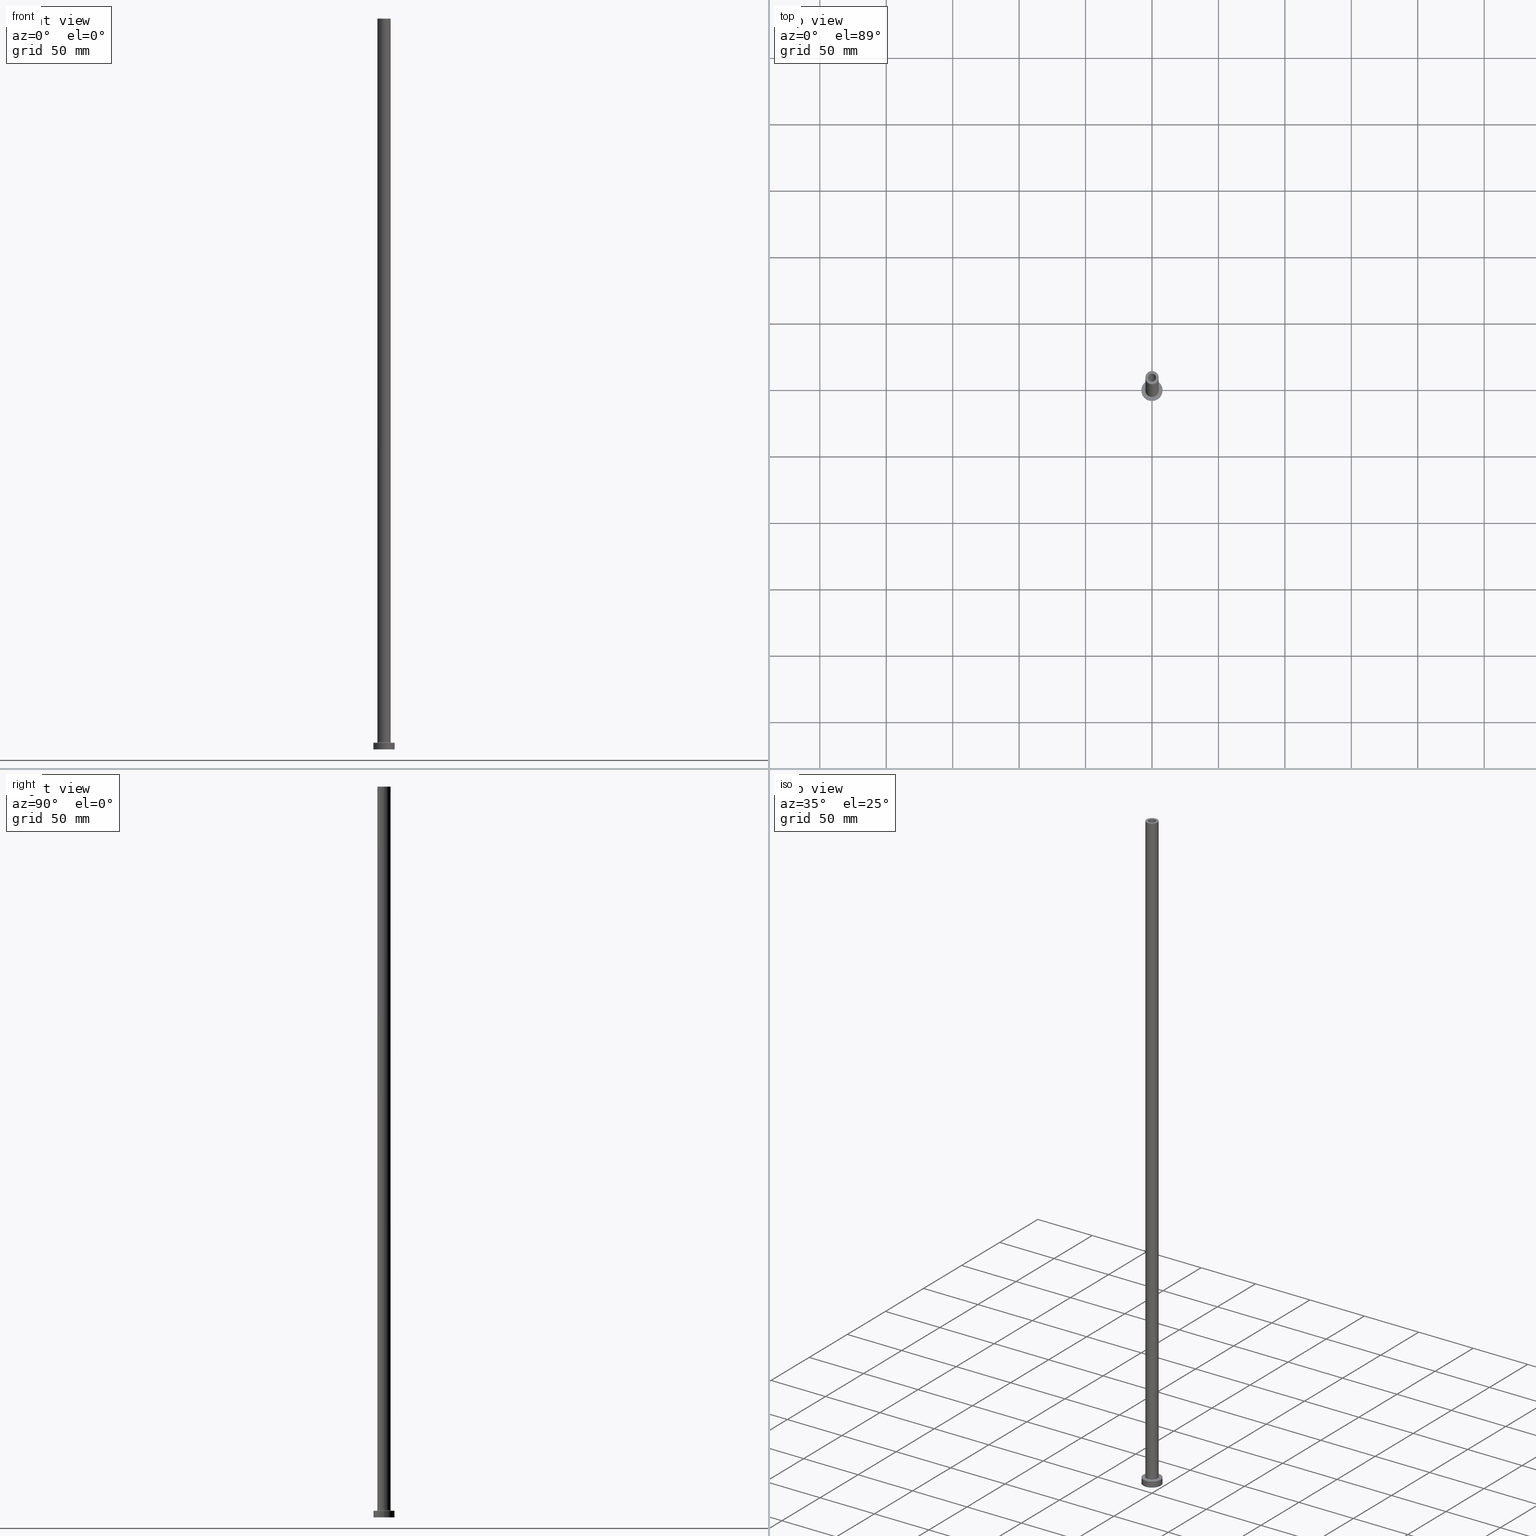
[diagram: canonical four-view strip — front | top / right | iso, engineering-drawing reading convention]
A machine part, canonical four-view strip (front | top / right | iso — engineering-drawing reading convention). The complete STEP part file that produces these views, byte-faithful:
ISO-10303-21;
HEADER;
FILE_DESCRIPTION (( 'STEP AP203' ),
    '1' );
FILE_NAME ('f461.STEP',
    '2023-02-13T15:29:50',
    ( '' ),
    ( '' ),
    'SwSTEP 2.0',
    'SolidWorks 2019',
    '' );
FILE_SCHEMA (( 'CONFIG_CONTROL_DESIGN' ));
ENDSEC;

DATA;
#1 = APPLICATION_PROTOCOL_DEFINITION ( 'international standard', 'config_control_design', 1994, #307 ) ;
#2 = DIRECTION ( 'NONE',  ( 1.000000000000000000, 0.000000000000000000, 0.000000000000000000 ) ) ;
#3 = EDGE_CURVE ( 'NONE', #164, #118, #447, .T. ) ;
#4 = VECTOR ( 'NONE', #140, 1000.000000000000000 ) ;
#5 = DIRECTION ( 'NONE',  ( -1.000000000000000000, 0.000000000000000000, 0.000000000000000000 ) ) ;
#6 = DIRECTION ( 'NONE',  ( -0.000000000000000000, -0.000000000000000000, -1.000000000000000000 ) ) ;
#7 = VECTOR ( 'NONE', #128, 1000.000000000000000 ) ;
#8 = DIRECTION ( 'NONE',  ( 0.000000000000000000, 0.000000000000000000, 1.000000000000000000 ) ) ;
#9 = AXIS2_PLACEMENT_3D ( 'NONE', #265, #203, #244 ) ;
#10 = EDGE_CURVE ( 'NONE', #369, #224, #190, .T. ) ;
#11 = CARTESIAN_POINT ( 'NONE',  ( 5.000000000000000000, 6.123233995736766282E-16, 5.499999999999949374 ) ) ;
#12 = ORIENTED_EDGE ( 'NONE', *, *, #10, .F. ) ;
#13 = ORIENTED_EDGE ( 'NONE', *, *, #80, .F. ) ;
#14 = AXIS2_PLACEMENT_3D ( 'NONE', #144, #178, #242 ) ;
#15 = CARTESIAN_POINT ( 'NONE',  ( 8.000000000000000000, 9.797174393178825657E-16, 0.000000000000000000 ) ) ;
#16 = VERTEX_POINT ( 'NONE', #30 ) ;
#17 = ADVANCED_FACE ( 'NONE', ( #424 ), #100, .F. ) ;
#18 = EDGE_LOOP ( 'NONE', ( #165, #266, #161, #77 ) ) ;
#19 = ORIENTED_EDGE ( 'NONE', *, *, #243, .T. ) ;
#20 = CARTESIAN_POINT ( 'NONE',  ( 0.000000000000000000, 0.000000000000000000, 550.0000000000000000 ) ) ;
#21 = PLANE ( 'NONE',  #450 ) ;
#22 = EDGE_CURVE ( 'NONE', #306, #405, #288, .T. ) ;
#23 = CARTESIAN_POINT ( 'NONE',  ( 5.000000000000000000, 6.123233995736766282E-16, 550.0000000000000000 ) ) ;
#24 = DATE_AND_TIME ( #63, #408 ) ;
#25 = CARTESIAN_POINT ( 'NONE',  ( 3.150000000000000355, 3.857637417314163182E-16, 0.000000000000000000 ) ) ;
#26 = CIRCLE ( 'NONE', #99, 3.150000000000000355 ) ;
#27 = AXIS2_PLACEMENT_3D ( 'NONE', #454, #381, #173 ) ;
#28 = CARTESIAN_POINT ( 'NONE',  ( 0.000000000000000000, 0.000000000000000000, 550.0000000000000000 ) ) ;
#29 = PERSON_AND_ORGANIZATION ( #88, #344 ) ;
#30 = CARTESIAN_POINT ( 'NONE',  ( -3.000000000000000444, 0.000000000000000000, 505.0000000000000000 ) ) ;
#31 = CARTESIAN_POINT ( 'NONE',  ( 0.000000000000000000, 0.000000000000000000, 0.000000000000000000 ) ) ;
#32 = CARTESIAN_POINT ( 'NONE',  ( -8.000000000000000000, 0.000000000000000000, 0.000000000000000000 ) ) ;
#33 = ORIENTED_EDGE ( 'NONE', *, *, #399, .F. ) ;
#34 = CC_DESIGN_SECURITY_CLASSIFICATION ( #108, ( #351 ) ) ;
#35 = APPROVAL_STATUS ( 'not_yet_approved' ) ;
#36 = ADVANCED_FACE ( 'NONE', ( #208 ), #109, .T. ) ;
#37 = AXIS2_PLACEMENT_3D ( 'NONE', #147, #282, #210 ) ;
#38 = FACE_BOUND ( 'NONE', #311, .T. ) ;
#39 = AXIS2_PLACEMENT_3D ( 'NONE', #31, #110, #286 ) ;
#40 = CARTESIAN_POINT ( 'NONE',  ( -3.150000000000000355, 0.000000000000000000, 0.000000000000000000 ) ) ;
#41 = DIRECTION ( 'NONE',  ( 0.000000000000000000, 0.000000000000000000, 1.000000000000000000 ) ) ;
#42 = ORIENTED_EDGE ( 'NONE', *, *, #217, .T. ) ;
#43 = CYLINDRICAL_SURFACE ( 'NONE', #220, 3.000000000000000444 ) ;
#44 = VECTOR ( 'NONE', #352, 1000.000000000000000 ) ;
#45 = EDGE_LOOP ( 'NONE', ( #134, #308, #197, #133 ) ) ;
#46 = CC_DESIGN_PERSON_AND_ORGANIZATION_ASSIGNMENT ( #29, #143, ( #270 ) ) ;
#47 = DIRECTION ( 'NONE',  ( 0.000000000000000000, 0.000000000000000000, -1.000000000000000000 ) ) ;
#48 = VERTEX_POINT ( 'NONE', #23 ) ;
#49 = CARTESIAN_POINT ( 'NONE',  ( 3.000000000000000444, 3.673940397442060361E-16, 505.0000000000000000 ) ) ;
#50 = ORIENTED_EDGE ( 'NONE', *, *, #313, .F. ) ;
#51 = EDGE_CURVE ( 'NONE', #273, #48, #174, .T. ) ;
#52 = ORIENTED_EDGE ( 'NONE', *, *, #10, .T. ) ;
#53 = EDGE_LOOP ( 'NONE', ( #54, #200 ) ) ;
#54 = ORIENTED_EDGE ( 'NONE', *, *, #51, .T. ) ;
#55 = LOCAL_TIME ( 16, 29, 50.00000000000000000, #66 ) ;
#56 = CARTESIAN_POINT ( 'NONE',  ( -3.000000000000000444, 0.000000000000000000, 550.0000000000000000 ) ) ;
#57 = EDGE_CURVE ( 'NONE', #224, #369, #281, .T. ) ;
#58 = DIRECTION ( 'NONE',  ( -1.000000000000000000, 0.000000000000000000, 0.000000000000000000 ) ) ;
#59 = CARTESIAN_POINT ( 'NONE',  ( 0.000000000000000000, 0.000000000000000000, 5.000000000000000000 ) ) ;
#60 = AXIS2_PLACEMENT_3D ( 'NONE', #158, #300, #225 ) ;
#61 = CARTESIAN_POINT ( 'NONE',  ( 8.000000000000000000, 9.797174393178825657E-16, 5.000000000000000000 ) ) ;
#62 = ORIENTED_EDGE ( 'NONE', *, *, #193, .F. ) ;
#63 = CALENDAR_DATE ( 2023, 13, 2 ) ;
#64 = EDGE_CURVE ( 'NONE', #16, #448, #236, .T. ) ;
#65 = VERTEX_POINT ( 'NONE', #201 ) ;
#66 = COORDINATED_UNIVERSAL_TIME_OFFSET ( 1, 0, .AHEAD. ) ;
#67 = FACE_OUTER_BOUND ( 'NONE', #18, .T. ) ;
#68 = APPROVAL_PERSON_ORGANIZATION ( #212, #290, #396 ) ;
#69 = AXIS2_PLACEMENT_3D ( 'NONE', #261, #185, #5 ) ;
#70 = DIRECTION ( 'NONE',  ( 1.000000000000000000, 0.000000000000000000, -0.000000000000000000 ) ) ;
#71 = ORIENTED_EDGE ( 'NONE', *, *, #51, .F. ) ;
#72 = APPROVAL_ROLE ( '' ) ;
#73 = DIRECTION ( 'NONE',  ( 0.000000000000000000, 0.000000000000000000, -1.000000000000000000 ) ) ;
#74 = AXIS2_PLACEMENT_3D ( 'NONE', #456, #141, #419 ) ;
#75 = CARTESIAN_POINT ( 'NONE',  ( 0.000000000000000000, 0.000000000000000000, 550.0000000000000000 ) ) ;
#76 = FACE_OUTER_BOUND ( 'NONE', #45, .T. ) ;
#77 = ORIENTED_EDGE ( 'NONE', *, *, #354, .F. ) ;
#78 = MANIFOLD_SOLID_BREP ( 'Odebrat vysunut�m4', #335 ) ;
#79 = FACE_OUTER_BOUND ( 'NONE', #377, .T. ) ;
#80 = EDGE_CURVE ( 'NONE', #273, #195, #426, .T. ) ;
#81 = CYLINDRICAL_SURFACE ( 'NONE', #103, 3.150000000000000355 ) ;
#82 = AXIS2_PLACEMENT_3D ( 'NONE', #20, #285, #391 ) ;
#83 = ORIENTED_EDGE ( 'NONE', *, *, #115, .F. ) ;
#84 = CIRCLE ( 'NONE', #176, 3.000000000000000444 ) ;
#85 = CARTESIAN_POINT ( 'NONE',  ( 0.000000000000000000, 0.000000000000000000, 505.0000000000000000 ) ) ;
#86 = ORIENTED_EDGE ( 'NONE', *, *, #204, .F. ) ;
#87 = CC_DESIGN_DATE_AND_TIME_ASSIGNMENT ( #363, #359, ( #108 ) ) ;
#88 = PERSON ( 'NEUR�EN�', 'NEUR�EN�', 'NEUR�EN�', ('NEUR�EN�'), ('NEUR�EN�'), ('NEUR�EN�') ) ;
#89 = FACE_OUTER_BOUND ( 'NONE', #403, .T. ) ;
#90 = EDGE_LOOP ( 'NONE', ( #269, #196 ) ) ;
#91 = ORIENTED_EDGE ( 'NONE', *, *, #440, .F. ) ;
#92 = VECTOR ( 'NONE', #167, 1000.000000000000000 ) ;
#93 = ORIENTED_EDGE ( 'NONE', *, *, #217, .F. ) ;
#94 = AXIS2_PLACEMENT_3D ( 'NONE', #332, #402, #254 ) ;
#95 = UNCERTAINTY_MEASURE_WITH_UNIT (LENGTH_MEASURE( 1.000000000000000082E-05 ), #267, 'distance_accuracy_value', 'NONE');
#96 = ORIENTED_EDGE ( 'NONE', *, *, #151, .F. ) ;
#97 = ADVANCED_FACE ( 'NONE', ( #67 ), #360, .F. ) ;
#98 = CYLINDRICAL_SURFACE ( 'NONE', #268, 8.000000000000000000 ) ;
#99 = AXIS2_PLACEMENT_3D ( 'NONE', #213, #293, #295 ) ;
#100 = CYLINDRICAL_SURFACE ( 'NONE', #252, 3.000000000000000444 ) ;
#101 = DIRECTION ( 'NONE',  ( 0.000000000000000000, 0.000000000000000000, 1.000000000000000000 ) ) ;
#102 = VERTEX_POINT ( 'NONE', #324 ) ;
#103 = AXIS2_PLACEMENT_3D ( 'NONE', #370, #47, #406 ) ;
#104 = SHAPE_DEFINITION_REPRESENTATION ( #179, #222 ) ;
#105 = PRODUCT_RELATED_PRODUCT_CATEGORY ( 'detail', '', ( #310 ) ) ;
#106 = LINE ( 'NONE', #171, #188 ) ;
#107 = PERSON_AND_ORGANIZATION ( #88, #344 ) ;
#108 = SECURITY_CLASSIFICATION ( '', '', #317 ) ;
#109 = CYLINDRICAL_SURFACE ( 'NONE', #202, 5.000000000000000000 ) ;
#110 = DIRECTION ( 'NONE',  ( 0.000000000000000000, 0.000000000000000000, 1.000000000000000000 ) ) ;
#111 = PLANE ( 'NONE',  #361 ) ;
#112 = CALENDAR_DATE ( 2023, 13, 2 ) ;
#113 = AXIS2_PLACEMENT_3D ( 'NONE', #114, #458, #397 ) ;
#114 = CARTESIAN_POINT ( 'NONE',  ( 0.000000000000000000, 0.000000000000000000, 505.0000000000000000 ) ) ;
#115 = EDGE_CURVE ( 'NONE', #48, #349, #106, .T. ) ;
#116 = PERSON_AND_ORGANIZATION ( #88, #344 ) ;
#117 = CARTESIAN_POINT ( 'NONE',  ( -5.000000000000000000, 0.000000000000000000, 5.499999999999949374 ) ) ;
#118 = VERTEX_POINT ( 'NONE', #25 ) ;
#119 = AXIS2_PLACEMENT_3D ( 'NONE', #137, #422, #274 ) ;
#120 = APPLICATION_CONTEXT ( 'configuration controlled 3d designs of mechanical parts and assemblies' ) ;
#121 = LINE ( 'NONE', #257, #378 ) ;
#122 = CC_DESIGN_PERSON_AND_ORGANIZATION_ASSIGNMENT ( #459, #427, ( #351 ) ) ;
#123 = CYLINDRICAL_SURFACE ( 'NONE', #69, 8.000000000000000000 ) ;
#124 = CIRCLE ( 'NONE', #94, 5.000000000000000000 ) ;
#125 = ORIENTED_EDGE ( 'NONE', *, *, #440, .T. ) ;
#126 = DIRECTION ( 'NONE',  ( 1.000000000000000000, 0.000000000000000000, 0.000000000000000000 ) ) ;
#127 = APPROVAL_PERSON_ORGANIZATION ( #116, #386, #246 ) ;
#128 = DIRECTION ( 'NONE',  ( 0.000000000000000000, 0.000000000000000000, -1.000000000000000000 ) ) ;
#129 = EDGE_LOOP ( 'NONE', ( #302, #407, #183, #96 ) ) ;
#130 = CC_DESIGN_PERSON_AND_ORGANIZATION_ASSIGNMENT ( #107, #248, ( #351 ) ) ;
#131 = CYLINDRICAL_SURFACE ( 'NONE', #60, 5.000000000000000000 ) ;
#132 = EDGE_LOOP ( 'NONE', ( #338, #42, #444, #411 ) ) ;
#133 = ORIENTED_EDGE ( 'NONE', *, *, #211, .F. ) ;
#134 = ORIENTED_EDGE ( 'NONE', *, *, #328, .F. ) ;
#135 = AXIS2_PLACEMENT_3D ( 'NONE', #330, #154, #2 ) ;
#136 = ADVANCED_FACE ( 'NONE', ( #316, #453 ), #280, .T. ) ;
#137 = CARTESIAN_POINT ( 'NONE',  ( 0.000000000000000000, 0.000000000000000000, 550.0000000000000000 ) ) ;
#138 = AXIS2_PLACEMENT_3D ( 'NONE', #85, #8, #159 ) ;
#139 = ORIENTED_EDGE ( 'NONE', *, *, #320, .T. ) ;
#140 = DIRECTION ( 'NONE',  ( 0.000000000000000000, 0.000000000000000000, -1.000000000000000000 ) ) ;
#141 = DIRECTION ( 'NONE',  ( 0.000000000000000000, 0.000000000000000000, 1.000000000000000000 ) ) ;
#142 = EDGE_CURVE ( 'NONE', #405, #306, #319, .T. ) ;
#143 = PERSON_AND_ORGANIZATION_ROLE ( 'creator' ) ;
#144 = CARTESIAN_POINT ( 'NONE',  ( 0.000000000000000000, 0.000000000000000000, 513.9095454429503889 ) ) ;
#145 = APPROVAL_STATUS ( 'not_yet_approved' ) ;
#146 = AXIS2_PLACEMENT_3D ( 'NONE', #157, #297, #216 ) ;
#147 = CARTESIAN_POINT ( 'NONE',  ( 0.000000000000000000, 0.000000000000000000, 505.0000000000000000 ) ) ;
#148 = DATE_AND_TIME ( #423, #241 ) ;
#149 = FACE_OUTER_BOUND ( 'NONE', #298, .T. ) ;
#150 = MECHANICAL_CONTEXT ( 'NONE', #120, 'mechanical' ) ;
#151 = EDGE_CURVE ( 'NONE', #65, #16, #314, .T. ) ;
#152 = CARTESIAN_POINT ( 'NONE',  ( 0.000000000000000000, 0.000000000000000000, 5.499999999999949374 ) ) ;
#153 = APPROVAL_PERSON_ORGANIZATION ( #425, #198, #72 ) ;
#154 = DIRECTION ( 'NONE',  ( 0.000000000000000000, 0.000000000000000000, 1.000000000000000000 ) ) ;
#155 = FACE_BOUND ( 'NONE', #271, .T. ) ;
#156 = ADVANCED_FACE ( 'NONE', ( #451 ), #357, .F. ) ;
#157 = CARTESIAN_POINT ( 'NONE',  ( 0.000000000000000000, 0.000000000000000000, 5.000000000000000000 ) ) ;
#158 = CARTESIAN_POINT ( 'NONE',  ( 0.000000000000000000, 0.000000000000000000, 550.0000000000000000 ) ) ;
#159 = DIRECTION ( 'NONE',  ( 1.000000000000000000, 0.000000000000000000, 0.000000000000000000 ) ) ;
#160 = EDGE_LOOP ( 'NONE', ( #264, #376, #394, #50 ) ) ;
#161 = ORIENTED_EDGE ( 'NONE', *, *, #227, .T. ) ;
#162 = LINE ( 'NONE', #279, #430 ) ;
#163 = ORIENTED_EDGE ( 'NONE', *, *, #151, .T. ) ;
#164 = VERTEX_POINT ( 'NONE', #40 ) ;
#165 = ORIENTED_EDGE ( 'NONE', *, *, #393, .T. ) ;
#166 = AXIS2_PLACEMENT_3D ( 'NONE', #239, #358, #277 ) ;
#167 = DIRECTION ( 'NONE',  ( 0.000000000000000000, 0.000000000000000000, -1.000000000000000000 ) ) ;
#168 = CIRCLE ( 'NONE', #395, 3.000000000000000444 ) ;
#169 = CARTESIAN_POINT ( 'NONE',  ( 3.150000000000000355, 3.857637417314163182E-16, 505.0000000000000000 ) ) ;
#170 = CC_DESIGN_PERSON_AND_ORGANIZATION_ASSIGNMENT ( #431, #390, ( #108 ) ) ;
#171 = CARTESIAN_POINT ( 'NONE',  ( 5.000000000000000000, 6.123233995736766282E-16, 550.0000000000000000 ) ) ;
#172 = CC_DESIGN_APPROVAL ( #386, ( #108 ) ) ;
#173 = DIRECTION ( 'NONE',  ( 1.000000000000000000, 0.000000000000000000, 0.000000000000000000 ) ) ;
#174 = CIRCLE ( 'NONE', #82, 5.000000000000000000 ) ;
#175 = DIRECTION ( 'NONE',  ( 0.000000000000000000, 0.000000000000000000, -1.000000000000000000 ) ) ;
#176 = AXIS2_PLACEMENT_3D ( 'NONE', #452, #315, #126 ) ;
#177 = PERSON_AND_ORGANIZATION ( #88, #344 ) ;
#178 = DIRECTION ( 'NONE',  ( 0.000000000000000000, 0.000000000000000000, -1.000000000000000000 ) ) ;
#179 = PRODUCT_DEFINITION_SHAPE ( 'NONE', 'NONE',  #270 ) ;
#180 = DATE_AND_TIME ( #323, #329 ) ;
#181 = CARTESIAN_POINT ( 'NONE',  ( -8.000000000000000000, 0.000000000000000000, 5.000000000000000000 ) ) ;
#182 = CIRCLE ( 'NONE', #296, 3.150000000000000355 ) ;
#183 = ORIENTED_EDGE ( 'NONE', *, *, #64, .F. ) ;
#184 = DIRECTION ( 'NONE',  ( 1.000000000000000000, 0.000000000000000000, 0.000000000000000000 ) ) ;
#185 = DIRECTION ( 'NONE',  ( -0.000000000000000000, -0.000000000000000000, -1.000000000000000000 ) ) ;
#186 = EDGE_CURVE ( 'NONE', #437, #118, #187, .T. ) ;
#187 = LINE ( 'NONE', #259, #272 ) ;
#188 = VECTOR ( 'NONE', #247, 1000.000000000000000 ) ;
#189 = FACE_OUTER_BOUND ( 'NONE', #226, .T. ) ;
#190 = CIRCLE ( 'NONE', #228, 8.000000000000000000 ) ;
#191 = DIRECTION ( 'NONE',  ( 0.000000000000000000, 0.000000000000000000, 1.000000000000000000 ) ) ;
#192 = EDGE_LOOP ( 'NONE', ( #401, #331, #348, #341 ) ) ;
#193 = EDGE_CURVE ( 'NONE', #65, #446, #334, .T. ) ;
#194 = CARTESIAN_POINT ( 'NONE',  ( 0.000000000000000000, 0.000000000000000000, 550.0000000000000000 ) ) ;
#195 = VERTEX_POINT ( 'NONE', #117 ) ;
#196 = ORIENTED_EDGE ( 'NONE', *, *, #142, .F. ) ;
#197 = ORIENTED_EDGE ( 'NONE', *, *, #243, .F. ) ;
#198 = APPROVAL ( #353, 'NEUR�EN�' ) ;
#199 = CIRCLE ( 'NONE', #455, 5.000000000000000000 ) ;
#200 = ORIENTED_EDGE ( 'NONE', *, *, #263, .T. ) ;
#201 = CARTESIAN_POINT ( 'NONE',  ( -3.000000000000000444, 0.000000000000000000, 550.0000000000000000 ) ) ;
#202 = AXIS2_PLACEMENT_3D ( 'NONE', #322, #355, #417 ) ;
#203 = DIRECTION ( 'NONE',  ( 1.224646799147353207E-16, 1.000000000000000000, -0.000000000000000000 ) ) ;
#204 = EDGE_CURVE ( 'NONE', #224, #306, #121, .T. ) ;
#205 = CC_DESIGN_APPROVAL ( #198, ( #351 ) ) ;
#206 = DIRECTION ( 'NONE',  ( 1.000000000000000000, 0.000000000000000000, 0.000000000000000000 ) ) ;
#207 = COORDINATED_UNIVERSAL_TIME_OFFSET ( 1, 0, .AHEAD. ) ;
#208 = FACE_OUTER_BOUND ( 'NONE', #327, .T. ) ;
#209 = EDGE_LOOP ( 'NONE', ( #83, #71, #214, #380 ) ) ;
#210 = DIRECTION ( 'NONE',  ( 1.000000000000000000, 0.000000000000000000, 0.000000000000000000 ) ) ;
#211 = EDGE_CURVE ( 'NONE', #349, #238, #309, .T. ) ;
#212 = PERSON_AND_ORGANIZATION ( #88, #344 ) ;
#213 = CARTESIAN_POINT ( 'NONE',  ( 0.000000000000000000, 0.000000000000000000, 505.0000000000000000 ) ) ;
#214 = ORIENTED_EDGE ( 'NONE', *, *, #80, .T. ) ;
#215 = CALENDAR_DATE ( 2023, 13, 2 ) ;
#216 = DIRECTION ( 'NONE',  ( 1.000000000000000000, 0.000000000000000000, 0.000000000000000000 ) ) ;
#217 = EDGE_CURVE ( 'NONE', #437, #371, #26, .T. ) ;
#218 = DIRECTION ( 'NONE',  ( 1.000000000000000000, 0.000000000000000000, 0.000000000000000000 ) ) ;
#219 = CC_DESIGN_APPROVAL ( #290, ( #270 ) ) ;
#220 = AXIS2_PLACEMENT_3D ( 'NONE', #75, #429, #289 ) ;
#221 = CARTESIAN_POINT ( 'NONE',  ( 0.000000000000000000, 0.000000000000000000, 5.499999999999949374 ) ) ;
#222 = ADVANCED_BREP_SHAPE_REPRESENTATION ( 'f461', ( #78, #39 ), #372 ) ;
#223 = DIRECTION ( 'NONE',  ( -0.000000000000000000, -0.000000000000000000, -1.000000000000000000 ) ) ;
#224 = VERTEX_POINT ( 'NONE', #181 ) ;
#225 = DIRECTION ( 'NONE',  ( -1.000000000000000000, 0.000000000000000000, 0.000000000000000000 ) ) ;
#226 = EDGE_LOOP ( 'NONE', ( #379, #93 ) ) ;
#227 = EDGE_CURVE ( 'NONE', #118, #164, #182, .T. ) ;
#228 = AXIS2_PLACEMENT_3D ( 'NONE', #59, #384, #206 ) ;
#229 = LOCAL_TIME ( 16, 29, 50.00000000000000000, #283 ) ;
#230 = LINE ( 'NONE', #438, #7 ) ;
#231 = ORIENTED_EDGE ( 'NONE', *, *, #339, .T. ) ;
#232 = CARTESIAN_POINT ( 'NONE',  ( 0.000000000000000000, 0.000000000000000000, 5.000000000000000000 ) ) ;
#233 = ORIENTED_EDGE ( 'NONE', *, *, #142, .T. ) ;
#234 = AXIS2_PLACEMENT_3D ( 'NONE', #221, #461, #218 ) ;
#235 = ADVANCED_FACE ( 'NONE', ( #76 ), #412, .F. ) ;
#236 = CIRCLE ( 'NONE', #37, 3.000000000000000444 ) ;
#237 = ORIENTED_EDGE ( 'NONE', *, *, #433, .F. ) ;
#238 = VERTEX_POINT ( 'NONE', #366 ) ;
#239 = CARTESIAN_POINT ( 'NONE',  ( 0.000000000000000000, 0.000000000000000000, 0.000000000000000000 ) ) ;
#240 = DIRECTION ( 'NONE',  ( 0.000000000000000000, 0.000000000000000000, 1.000000000000000000 ) ) ;
#241 = LOCAL_TIME ( 16, 29, 50.00000000000000000, #207 ) ;
#242 = DIRECTION ( 'NONE',  ( -1.000000000000000000, 0.000000000000000000, 0.000000000000000000 ) ) ;
#243 = EDGE_CURVE ( 'NONE', #238, #102, #346, .T. ) ;
#244 = DIRECTION ( 'NONE',  ( -1.000000000000000000, 1.224646799147351482E-16, 0.000000000000000000 ) ) ;
#245 = DIRECTION ( 'NONE',  ( 0.000000000000000000, 0.000000000000000000, 1.000000000000000000 ) ) ;
#246 = APPROVAL_ROLE ( '' ) ;
#247 = DIRECTION ( 'NONE',  ( -0.000000000000000000, -0.000000000000000000, -1.000000000000000000 ) ) ;
#248 = PERSON_AND_ORGANIZATION_ROLE ( 'creator' ) ;
#249 = CARTESIAN_POINT ( 'NONE',  ( -5.000000000000000000, 0.000000000000000000, 550.0000000000000000 ) ) ;
#250 = APPROVAL_DATE_TIME ( #148, #386 ) ;
#251 = CARTESIAN_POINT ( 'NONE',  ( 0.000000000000000000, 0.000000000000000000, 5.000000000000000000 ) ) ;
#252 = AXIS2_PLACEMENT_3D ( 'NONE', #28, #175, #389 ) ;
#253 = DATE_AND_TIME ( #112, #229 ) ;
#254 = DIRECTION ( 'NONE',  ( 1.000000000000000000, 0.000000000000000000, 0.000000000000000000 ) ) ;
#255 = ADVANCED_FACE ( 'NONE', ( #436 ), #123, .T. ) ;
#256 = COORDINATED_UNIVERSAL_TIME_OFFSET ( 1, 0, .AHEAD. ) ;
#257 = CARTESIAN_POINT ( 'NONE',  ( -8.000000000000000000, 0.000000000000000000, 5.000000000000000000 ) ) ;
#258 = ORIENTED_EDGE ( 'NONE', *, *, #115, .T. ) ;
#259 = CARTESIAN_POINT ( 'NONE',  ( 3.150000000000000355, 3.857637417314163182E-16, 513.9095454429503889 ) ) ;
#260 = CIRCLE ( 'NONE', #138, 3.150000000000000355 ) ;
#261 = CARTESIAN_POINT ( 'NONE',  ( 0.000000000000000000, 0.000000000000000000, 5.000000000000000000 ) ) ;
#262 = FACE_OUTER_BOUND ( 'NONE', #132, .T. ) ;
#263 = EDGE_CURVE ( 'NONE', #48, #273, #124, .T. ) ;
#264 = ORIENTED_EDGE ( 'NONE', *, *, #367, .F. ) ;
#265 = CARTESIAN_POINT ( 'NONE',  ( -5.500000000000000000, 6.735557395310442023E-16, 5.499999999999949374 ) ) ;
#266 = ORIENTED_EDGE ( 'NONE', *, *, #186, .T. ) ;
#267 =( LENGTH_UNIT ( ) NAMED_UNIT ( * ) SI_UNIT ( .MILLI., .METRE. ) );
#268 = AXIS2_PLACEMENT_3D ( 'NONE', #232, #383, #58 ) ;
#269 = ORIENTED_EDGE ( 'NONE', *, *, #22, .F. ) ;
#270 = PRODUCT_DEFINITION ( 'NEZN�M�', '', #351, #460 ) ;
#271 = EDGE_LOOP ( 'NONE', ( #441, #125 ) ) ;
#272 = VECTOR ( 'NONE', #368, 1000.000000000000000 ) ;
#273 = VERTEX_POINT ( 'NONE', #365 ) ;
#274 = DIRECTION ( 'NONE',  ( 1.000000000000000000, 0.000000000000000000, -0.000000000000000000 ) ) ;
#275 = CIRCLE ( 'NONE', #374, 5.000000000000000000 ) ;
#276 =( NAMED_UNIT ( * ) SI_UNIT ( $, .STERADIAN. ) SOLID_ANGLE_UNIT ( ) );
#277 = DIRECTION ( 'NONE',  ( 1.000000000000000000, 0.000000000000000000, 0.000000000000000000 ) ) ;
#278 = ADVANCED_FACE ( 'NONE', ( #79 ), #43, .F. ) ;
#279 = CARTESIAN_POINT ( 'NONE',  ( 8.000000000000000000, 9.797174393178825657E-16, 5.000000000000000000 ) ) ;
#280 = PLANE ( 'NONE',  #119 ) ;
#281 = CIRCLE ( 'NONE', #74, 8.000000000000000000 ) ;
#282 = DIRECTION ( 'NONE',  ( 0.000000000000000000, 0.000000000000000000, 1.000000000000000000 ) ) ;
#283 = COORDINATED_UNIVERSAL_TIME_OFFSET ( 1, 0, .AHEAD. ) ;
#284 = CC_DESIGN_DATE_AND_TIME_ASSIGNMENT ( #180, #325, ( #270 ) ) ;
#285 = DIRECTION ( 'NONE',  ( 0.000000000000000000, 0.000000000000000000, 1.000000000000000000 ) ) ;
#286 = DIRECTION ( 'NONE',  ( 1.000000000000000000, 0.000000000000000000, 0.000000000000000000 ) ) ;
#287 = CARTESIAN_POINT ( 'NONE',  ( 0.000000000000000000, 0.000000000000000000, 0.000000000000000000 ) ) ;
#288 = CIRCLE ( 'NONE', #435, 8.000000000000000000 ) ;
#289 = DIRECTION ( 'NONE',  ( -1.000000000000000000, 0.000000000000000000, 0.000000000000000000 ) ) ;
#290 = APPROVAL ( #145, 'NEUR�EN�' ) ;
#291 = APPROVAL_DATE_TIME ( #253, #290 ) ;
#292 = AXIS2_PLACEMENT_3D ( 'NONE', #362, #326, #184 ) ;
#293 = DIRECTION ( 'NONE',  ( 0.000000000000000000, 0.000000000000000000, 1.000000000000000000 ) ) ;
#294 = ORIENTED_EDGE ( 'NONE', *, *, #227, .F. ) ;
#295 = DIRECTION ( 'NONE',  ( 1.000000000000000000, 0.000000000000000000, 0.000000000000000000 ) ) ;
#296 = AXIS2_PLACEMENT_3D ( 'NONE', #287, #223, #428 ) ;
#297 = DIRECTION ( 'NONE',  ( -0.000000000000000000, -0.000000000000000000, -1.000000000000000000 ) ) ;
#298 = EDGE_LOOP ( 'NONE', ( #443, #52 ) ) ;
#299 = ADVANCED_FACE ( 'NONE', ( #155, #189 ), #434, .F. ) ;
#300 = DIRECTION ( 'NONE',  ( -0.000000000000000000, -0.000000000000000000, -1.000000000000000000 ) ) ;
#301 = CARTESIAN_POINT ( 'NONE',  ( -3.150000000000000355, 0.000000000000000000, 505.0000000000000000 ) ) ;
#302 = ORIENTED_EDGE ( 'NONE', *, *, #193, .T. ) ;
#303 = LINE ( 'NONE', #418, #4 ) ;
#304 = EDGE_LOOP ( 'NONE', ( #62, #33 ) ) ;
#305 = ADVANCED_FACE ( 'NONE', ( #38, #149 ), #111, .T. ) ;
#306 = VERTEX_POINT ( 'NONE', #32 ) ;
#307 = APPLICATION_CONTEXT ( 'configuration controlled 3d designs of mechanical parts and assemblies' ) ;
#308 = ORIENTED_EDGE ( 'NONE', *, *, #367, .T. ) ;
#309 = CIRCLE ( 'NONE', #382, 0.5000000000000004441 ) ;
#310 = PRODUCT ( 'f461', 'f461', '', ( #150 ) ) ;
#311 = EDGE_LOOP ( 'NONE', ( #19, #413 ) ) ;
#312 = CARTESIAN_POINT ( 'NONE',  ( 0.000000000000000000, 0.000000000000000000, 5.499999999999949374 ) ) ;
#313 = EDGE_CURVE ( 'NONE', #102, #238, #345, .T. ) ;
#314 = LINE ( 'NONE', #56, #92 ) ;
#315 = DIRECTION ( 'NONE',  ( 0.000000000000000000, 0.000000000000000000, 1.000000000000000000 ) ) ;
#316 = FACE_BOUND ( 'NONE', #304, .T. ) ;
#317 = SECURITY_CLASSIFICATION_LEVEL ( 'unclassified' ) ;
#318 = CARTESIAN_POINT ( 'NONE',  ( 0.000000000000000000, 0.000000000000000000, 0.000000000000000000 ) ) ;
#319 = CIRCLE ( 'NONE', #27, 8.000000000000000000 ) ;
#320 = EDGE_CURVE ( 'NONE', #369, #405, #162, .T. ) ;
#321 = PERSON_AND_ORGANIZATION_ROLE ( 'design_owner' ) ;
#322 = CARTESIAN_POINT ( 'NONE',  ( 0.000000000000000000, 0.000000000000000000, 550.0000000000000000 ) ) ;
#323 = CALENDAR_DATE ( 2023, 13, 2 ) ;
#324 = CARTESIAN_POINT ( 'NONE',  ( -5.500000000000000000, 6.735557395310442023E-16, 4.999999999999975131 ) ) ;
#325 = DATE_TIME_ROLE ( 'creation_date' ) ;
#326 = DIRECTION ( 'NONE',  ( -0.000000000000000000, -0.000000000000000000, -1.000000000000000000 ) ) ;
#327 = EDGE_LOOP ( 'NONE', ( #347, #258, #231, #13 ) ) ;
#328 = EDGE_CURVE ( 'NONE', #195, #349, #275, .T. ) ;
#329 = LOCAL_TIME ( 16, 29, 50.00000000000000000, #388 ) ;
#330 = CARTESIAN_POINT ( 'NONE',  ( 0.000000000000000000, 0.000000000000000000, 550.0000000000000000 ) ) ;
#331 = ORIENTED_EDGE ( 'NONE', *, *, #57, .F. ) ;
#332 = CARTESIAN_POINT ( 'NONE',  ( 0.000000000000000000, 0.000000000000000000, 550.0000000000000000 ) ) ;
#333 = DIRECTION ( 'NONE',  ( 1.000000000000000000, 0.000000000000000000, 0.000000000000000000 ) ) ;
#334 = CIRCLE ( 'NONE', #135, 3.000000000000000444 ) ;
#335 = CLOSED_SHELL ( 'NONE', ( #17, #97, #235, #36, #364, #255, #305, #409, #420, #136, #156, #445, #299, #278 ) ) ;
#336 = DIRECTION ( 'NONE',  ( 1.000000000000000000, 0.000000000000000000, -0.000000000000000000 ) ) ;
#337 = FACE_OUTER_BOUND ( 'NONE', #209, .T. ) ;
#338 = ORIENTED_EDGE ( 'NONE', *, *, #186, .F. ) ;
#339 = EDGE_CURVE ( 'NONE', #349, #195, #199, .T. ) ;
#340 = DIRECTION ( 'NONE',  ( -0.000000000000000000, -0.000000000000000000, -1.000000000000000000 ) ) ;
#341 = ORIENTED_EDGE ( 'NONE', *, *, #22, .T. ) ;
#342 = DIRECTION ( 'NONE',  ( 1.000000000000000000, 0.000000000000000000, 0.000000000000000000 ) ) ;
#343 = ORIENTED_EDGE ( 'NONE', *, *, #3, .F. ) ;
#344 = ORGANIZATION ( 'NEUR�EN�', 'NEUR�EN�', '' ) ;
#345 = CIRCLE ( 'NONE', #292, 5.500000000000000000 ) ;
#346 = CIRCLE ( 'NONE', #146, 5.500000000000000000 ) ;
#347 = ORIENTED_EDGE ( 'NONE', *, *, #263, .F. ) ;
#348 = ORIENTED_EDGE ( 'NONE', *, *, #204, .T. ) ;
#349 = VERTEX_POINT ( 'NONE', #11 ) ;
#350 = FACE_BOUND ( 'NONE', #432, .T. ) ;
#351 = PRODUCT_DEFINITION_FORMATION_WITH_SPECIFIED_SOURCE ( 'LIBOVOLN�', '', #310, .NOT_KNOWN. ) ;
#352 = DIRECTION ( 'NONE',  ( -0.000000000000000000, -0.000000000000000000, -1.000000000000000000 ) ) ;
#353 = APPROVAL_STATUS ( 'not_yet_approved' ) ;
#354 = EDGE_CURVE ( 'NONE', #371, #164, #303, .T. ) ;
#355 = DIRECTION ( 'NONE',  ( -0.000000000000000000, -0.000000000000000000, -1.000000000000000000 ) ) ;
#356 = APPLICATION_PROTOCOL_DEFINITION ( 'international standard', 'config_control_design', 1994, #120 ) ;
#357 = TOROIDAL_SURFACE ( 'NONE', #414, 5.500000000000000000, 0.5000000000000000000 ) ;
#358 = DIRECTION ( 'NONE',  ( -0.000000000000000000, -0.000000000000000000, -1.000000000000000000 ) ) ;
#359 = DATE_TIME_ROLE ( 'classification_date' ) ;
#360 = CYLINDRICAL_SURFACE ( 'NONE', #14, 3.150000000000000355 ) ;
#361 = AXIS2_PLACEMENT_3D ( 'NONE', #251, #392, #70 ) ;
#362 = CARTESIAN_POINT ( 'NONE',  ( 0.000000000000000000, 0.000000000000000000, 5.000000000000000000 ) ) ;
#363 = DATE_AND_TIME ( #215, #55 ) ;
#364 = ADVANCED_FACE ( 'NONE', ( #89 ), #98, .T. ) ;
#365 = CARTESIAN_POINT ( 'NONE',  ( -5.000000000000000000, 0.000000000000000000, 550.0000000000000000 ) ) ;
#366 = CARTESIAN_POINT ( 'NONE',  ( 5.500000000000000000, 0.000000000000000000, 4.999999999999975131 ) ) ;
#367 = EDGE_CURVE ( 'NONE', #195, #102, #416, .T. ) ;
#368 = DIRECTION ( 'NONE',  ( 0.000000000000000000, 0.000000000000000000, -1.000000000000000000 ) ) ;
#369 = VERTEX_POINT ( 'NONE', #61 ) ;
#370 = CARTESIAN_POINT ( 'NONE',  ( 0.000000000000000000, 0.000000000000000000, 513.9095454429503889 ) ) ;
#371 = VERTEX_POINT ( 'NONE', #301 ) ;
#372 =( GEOMETRIC_REPRESENTATION_CONTEXT ( 3 ) GLOBAL_UNCERTAINTY_ASSIGNED_CONTEXT ( ( #95 ) ) GLOBAL_UNIT_ASSIGNED_CONTEXT ( ( #267, #410, #276 ) ) REPRESENTATION_CONTEXT ( 'NONE', 'WORKASPACE' ) );
#373 = CC_DESIGN_PERSON_AND_ORGANIZATION_ASSIGNMENT ( #177, #321, ( #310 ) ) ;
#374 = AXIS2_PLACEMENT_3D ( 'NONE', #421, #191, #442 ) ;
#375 = CARTESIAN_POINT ( 'NONE',  ( 3.000000000000000444, 3.673940397442060361E-16, 550.0000000000000000 ) ) ;
#376 = ORIENTED_EDGE ( 'NONE', *, *, #339, .F. ) ;
#377 = EDGE_LOOP ( 'NONE', ( #237, #415, #163, #91 ) ) ;
#378 = VECTOR ( 'NONE', #6, 1000.000000000000000 ) ;
#379 = ORIENTED_EDGE ( 'NONE', *, *, #393, .F. ) ;
#380 = ORIENTED_EDGE ( 'NONE', *, *, #328, .T. ) ;
#381 = DIRECTION ( 'NONE',  ( 0.000000000000000000, 0.000000000000000000, 1.000000000000000000 ) ) ;
#382 = AXIS2_PLACEMENT_3D ( 'NONE', #400, #398, #73 ) ;
#383 = DIRECTION ( 'NONE',  ( -0.000000000000000000, -0.000000000000000000, -1.000000000000000000 ) ) ;
#384 = DIRECTION ( 'NONE',  ( 0.000000000000000000, 0.000000000000000000, 1.000000000000000000 ) ) ;
#385 = FACE_OUTER_BOUND ( 'NONE', #90, .T. ) ;
#386 = APPROVAL ( #35, 'NEUR�EN�' ) ;
#387 = DIRECTION ( 'NONE',  ( 1.000000000000000000, 0.000000000000000000, 0.000000000000000000 ) ) ;
#388 = COORDINATED_UNIVERSAL_TIME_OFFSET ( 1, 0, .AHEAD. ) ;
#389 = DIRECTION ( 'NONE',  ( -1.000000000000000000, 0.000000000000000000, 0.000000000000000000 ) ) ;
#390 = PERSON_AND_ORGANIZATION_ROLE ( 'classification_officer' ) ;
#391 = DIRECTION ( 'NONE',  ( 1.000000000000000000, 0.000000000000000000, 0.000000000000000000 ) ) ;
#392 = DIRECTION ( 'NONE',  ( 0.000000000000000000, 0.000000000000000000, 1.000000000000000000 ) ) ;
#393 = EDGE_CURVE ( 'NONE', #371, #437, #260, .T. ) ;
#394 = ORIENTED_EDGE ( 'NONE', *, *, #211, .T. ) ;
#395 = AXIS2_PLACEMENT_3D ( 'NONE', #194, #449, #439 ) ;
#396 = APPROVAL_ROLE ( '' ) ;
#397 = DIRECTION ( 'NONE',  ( 1.000000000000000000, 0.000000000000000000, -0.000000000000000000 ) ) ;
#398 = DIRECTION ( 'NONE',  ( 0.000000000000000000, -1.000000000000000000, 0.000000000000000000 ) ) ;
#399 = EDGE_CURVE ( 'NONE', #446, #65, #168, .T. ) ;
#400 = CARTESIAN_POINT ( 'NONE',  ( 5.500000000000000000, 0.000000000000000000, 5.499999999999949374 ) ) ;
#401 = ORIENTED_EDGE ( 'NONE', *, *, #320, .F. ) ;
#402 = DIRECTION ( 'NONE',  ( 0.000000000000000000, 0.000000000000000000, 1.000000000000000000 ) ) ;
#403 = EDGE_LOOP ( 'NONE', ( #12, #139, #233, #86 ) ) ;
#404 = CARTESIAN_POINT ( 'NONE',  ( 0.000000000000000000, 0.000000000000000000, 0.000000000000000000 ) ) ;
#405 = VERTEX_POINT ( 'NONE', #15 ) ;
#406 = DIRECTION ( 'NONE',  ( -1.000000000000000000, 0.000000000000000000, 0.000000000000000000 ) ) ;
#407 = ORIENTED_EDGE ( 'NONE', *, *, #433, .T. ) ;
#408 = LOCAL_TIME ( 16, 29, 50.00000000000000000, #256 ) ;
#409 = ADVANCED_FACE ( 'NONE', ( #350, #385 ), #21, .F. ) ;
#410 =( NAMED_UNIT ( * ) PLANE_ANGLE_UNIT ( ) SI_UNIT ( $, .RADIAN. ) );
#411 = ORIENTED_EDGE ( 'NONE', *, *, #3, .T. ) ;
#412 = TOROIDAL_SURFACE ( 'NONE', #234, 5.500000000000000000, 0.5000000000000000000 ) ;
#413 = ORIENTED_EDGE ( 'NONE', *, *, #313, .T. ) ;
#414 = AXIS2_PLACEMENT_3D ( 'NONE', #152, #41, #333 ) ;
#415 = ORIENTED_EDGE ( 'NONE', *, *, #399, .T. ) ;
#416 = CIRCLE ( 'NONE', #9, 0.5000000000000004441 ) ;
#417 = DIRECTION ( 'NONE',  ( -1.000000000000000000, 0.000000000000000000, 0.000000000000000000 ) ) ;
#418 = CARTESIAN_POINT ( 'NONE',  ( -3.150000000000000355, 0.000000000000000000, 513.9095454429503889 ) ) ;
#419 = DIRECTION ( 'NONE',  ( 1.000000000000000000, 0.000000000000000000, 0.000000000000000000 ) ) ;
#420 = ADVANCED_FACE ( 'NONE', ( #337 ), #131, .T. ) ;
#421 = CARTESIAN_POINT ( 'NONE',  ( 0.000000000000000000, 0.000000000000000000, 5.499999999999949374 ) ) ;
#422 = DIRECTION ( 'NONE',  ( 0.000000000000000000, 0.000000000000000000, 1.000000000000000000 ) ) ;
#423 = CALENDAR_DATE ( 2023, 13, 2 ) ;
#424 = FACE_OUTER_BOUND ( 'NONE', #129, .T. ) ;
#425 = PERSON_AND_ORGANIZATION ( #88, #344 ) ;
#426 = LINE ( 'NONE', #249, #44 ) ;
#427 = PERSON_AND_ORGANIZATION_ROLE ( 'design_supplier' ) ;
#428 = DIRECTION ( 'NONE',  ( 1.000000000000000000, 0.000000000000000000, 0.000000000000000000 ) ) ;
#429 = DIRECTION ( 'NONE',  ( 0.000000000000000000, 0.000000000000000000, -1.000000000000000000 ) ) ;
#430 = VECTOR ( 'NONE', #340, 1000.000000000000000 ) ;
#431 = PERSON_AND_ORGANIZATION ( #88, #344 ) ;
#432 = EDGE_LOOP ( 'NONE', ( #343, #294 ) ) ;
#433 = EDGE_CURVE ( 'NONE', #446, #448, #230, .T. ) ;
#434 = PLANE ( 'NONE',  #113 ) ;
#435 = AXIS2_PLACEMENT_3D ( 'NONE', #318, #245, #387 ) ;
#436 = FACE_OUTER_BOUND ( 'NONE', #192, .T. ) ;
#437 = VERTEX_POINT ( 'NONE', #169 ) ;
#438 = CARTESIAN_POINT ( 'NONE',  ( 3.000000000000000444, 3.673940397442060361E-16, 550.0000000000000000 ) ) ;
#439 = DIRECTION ( 'NONE',  ( 1.000000000000000000, 0.000000000000000000, 0.000000000000000000 ) ) ;
#440 = EDGE_CURVE ( 'NONE', #448, #16, #84, .T. ) ;
#441 = ORIENTED_EDGE ( 'NONE', *, *, #64, .T. ) ;
#442 = DIRECTION ( 'NONE',  ( 1.000000000000000000, 0.000000000000000000, 0.000000000000000000 ) ) ;
#443 = ORIENTED_EDGE ( 'NONE', *, *, #57, .T. ) ;
#444 = ORIENTED_EDGE ( 'NONE', *, *, #354, .T. ) ;
#445 = ADVANCED_FACE ( 'NONE', ( #262 ), #81, .F. ) ;
#446 = VERTEX_POINT ( 'NONE', #375 ) ;
#447 = CIRCLE ( 'NONE', #166, 3.150000000000000355 ) ;
#448 = VERTEX_POINT ( 'NONE', #49 ) ;
#449 = DIRECTION ( 'NONE',  ( 0.000000000000000000, 0.000000000000000000, 1.000000000000000000 ) ) ;
#450 = AXIS2_PLACEMENT_3D ( 'NONE', #404, #101, #336 ) ;
#451 = FACE_OUTER_BOUND ( 'NONE', #160, .T. ) ;
#452 = CARTESIAN_POINT ( 'NONE',  ( 0.000000000000000000, 0.000000000000000000, 505.0000000000000000 ) ) ;
#453 = FACE_OUTER_BOUND ( 'NONE', #53, .T. ) ;
#454 = CARTESIAN_POINT ( 'NONE',  ( 0.000000000000000000, 0.000000000000000000, 0.000000000000000000 ) ) ;
#455 = AXIS2_PLACEMENT_3D ( 'NONE', #312, #240, #342 ) ;
#456 = CARTESIAN_POINT ( 'NONE',  ( 0.000000000000000000, 0.000000000000000000, 5.000000000000000000 ) ) ;
#457 = APPROVAL_DATE_TIME ( #24, #198 ) ;
#458 = DIRECTION ( 'NONE',  ( 0.000000000000000000, 0.000000000000000000, 1.000000000000000000 ) ) ;
#459 = PERSON_AND_ORGANIZATION ( #88, #344 ) ;
#460 = DESIGN_CONTEXT ( 'detailed design', #307, 'design' ) ;
#461 = DIRECTION ( 'NONE',  ( 0.000000000000000000, 0.000000000000000000, 1.000000000000000000 ) ) ;
ENDSEC;
END-ISO-10303-21;
